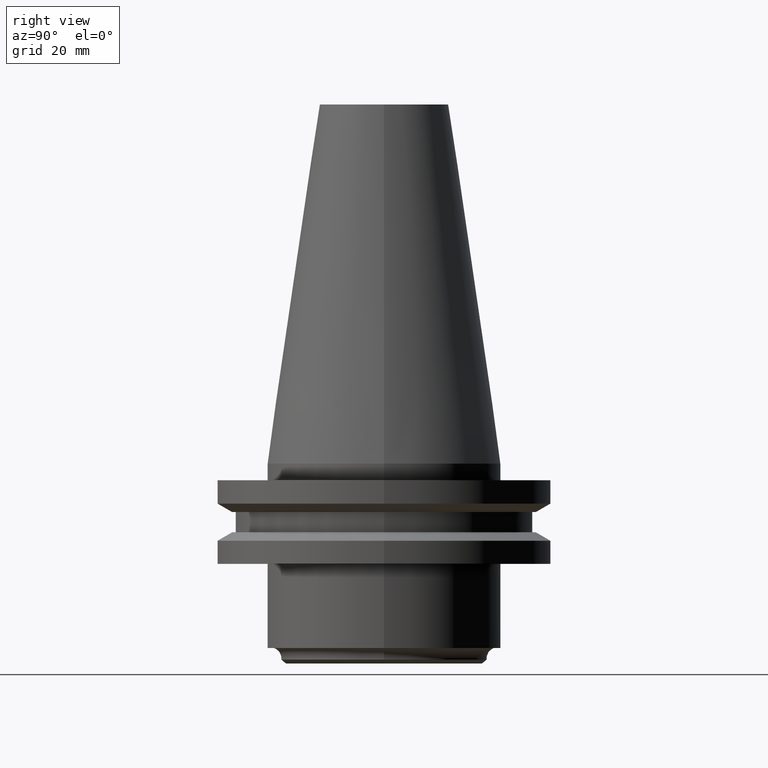
[diagram: clean part render]
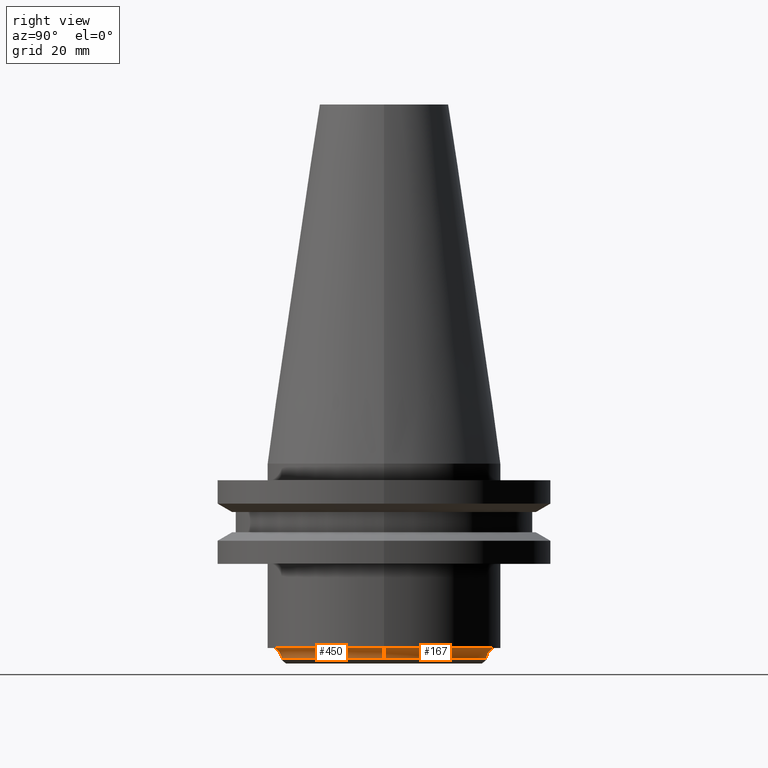
[diagram: same view with one multi-face feature highlighted, each face labeled with its STEP entity id]
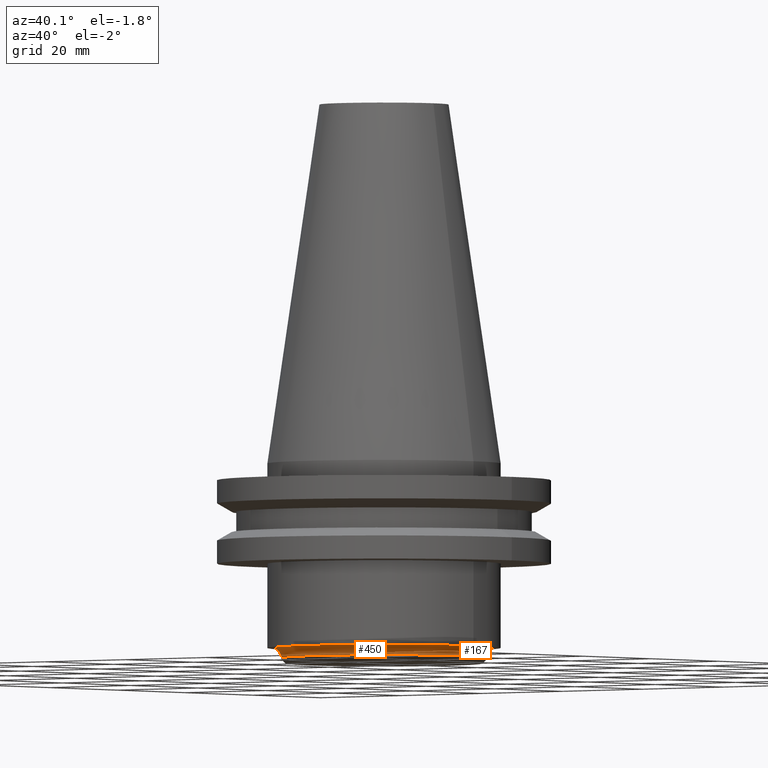
[diagram: same view with one multi-face feature highlighted, each face labeled with its STEP entity id]
A machine part, right view. The highlighted faces form ONE feature: a constant-radius fillet chain: 2 tangent blend faces with common blend radius 2 mm. The faces share edges in the B-rep.
A second angle (auxiliary view) of the same feature is appended — it is thin or edge-on in the first view.
Their STEP definitions:
[1] entity #167 (Torus):
#24 = CARTESIAN_POINT ( 'NONE',  ( 0.000000000000000000, 0.000000000000000000, -36.94999999999999574 ) ) ;
#52 = EDGE_CURVE ( 'NONE', #328, #809, #323, .T. ) ;
#89 = DIRECTION ( 'NONE',  ( 1.000000000000000000, 0.000000000000000000, 0.000000000000000000 ) ) ;
#130 = EDGE_LOOP ( 'NONE', ( #560, #666, #306, #519 ) ) ;
#148 = AXIS2_PLACEMENT_3D ( 'NONE', #580, #196, #427 ) ;
#149 = AXIS2_PLACEMENT_3D ( 'NONE', #413, #222, #357 ) ;
#158 = DIRECTION ( 'NONE',  ( -0.000000000000000000, -0.000000000000000000, 1.000000000000000000 ) ) ;
#163 = AXIS2_PLACEMENT_3D ( 'NONE', #595, #463, #790 ) ;
#167 = ADVANCED_FACE ( 'NONE', ( #765 ), #367, .F. ) ;
#178 = VERTEX_POINT ( 'NONE', #575 ) ;
#185 = AXIS2_PLACEMENT_3D ( 'NONE', #24, #726, #349 ) ;
#196 = DIRECTION ( 'NONE',  ( -0.000000000000000000, -0.000000000000000000, 1.000000000000000000 ) ) ;
#222 = DIRECTION ( 'NONE',  ( 0.000000000000000000, -1.000000000000000000, 0.000000000000000000 ) ) ;
#276 = CARTESIAN_POINT ( 'NONE',  ( -20.87550020016014329, 2.556511450072605118E-15, -35.04999999999999716 ) ) ;
#280 = VERTEX_POINT ( 'NONE', #457 ) ;
#306 = ORIENTED_EDGE ( 'NONE', *, *, #799, .T. ) ;
#323 = CIRCLE ( 'NONE', #626, 20.87550020016014685 ) ;
#328 = VERTEX_POINT ( 'NONE', #404 ) ;
#338 = EDGE_CURVE ( 'NONE', #809, #280, #643, .T. ) ;
#349 = DIRECTION ( 'NONE',  ( 1.000000000000000000, 0.000000000000000000, 0.000000000000000000 ) ) ;
#357 = DIRECTION ( 'NONE',  ( 0.000000000000000000, 0.000000000000000000, -1.000000000000000000 ) ) ;
#367 = TOROIDAL_SURFACE ( 'NONE', #148, 21.50000000000000000, 2.000000000000003997 ) ;
#401 = EDGE_CURVE ( 'NONE', #178, #280, #443, .T. ) ;
#404 = CARTESIAN_POINT ( 'NONE',  ( 20.87550020016014329, 0.000000000000000000, -35.04999999999999716 ) ) ;
#413 = CARTESIAN_POINT ( 'NONE',  ( 21.50000000000000000, 0.000000000000000000, -36.94999999999999574 ) ) ;
#427 = DIRECTION ( 'NONE',  ( 1.000000000000000000, 0.000000000000000000, 0.000000000000000000 ) ) ;
#443 = CIRCLE ( 'NONE', #185, 19.49999999999999289 ) ;
#457 = CARTESIAN_POINT ( 'NONE',  ( -19.49999999999999289, 2.472286354204971437E-15, -36.94999999999999574 ) ) ;
#463 = DIRECTION ( 'NONE',  ( 1.224646799147353207E-16, 1.000000000000000000, 0.000000000000000000 ) ) ;
#519 = ORIENTED_EDGE ( 'NONE', *, *, #401, .T. ) ;
#560 = ORIENTED_EDGE ( 'NONE', *, *, #338, .F. ) ;
#575 = CARTESIAN_POINT ( 'NONE',  ( 19.49999999999999289, 0.000000000000000000, -36.94999999999999574 ) ) ;
#580 = CARTESIAN_POINT ( 'NONE',  ( 0.000000000000000000, 0.000000000000000000, -36.94999999999999574 ) ) ;
#595 = CARTESIAN_POINT ( 'NONE',  ( -21.50000000000000000, 2.632990618166809235E-15, -36.94999999999999574 ) ) ;
#626 = AXIS2_PLACEMENT_3D ( 'NONE', #665, #158, #89 ) ;
#643 = CIRCLE ( 'NONE', #163, 2.000000000000005329 ) ;
#647 = CIRCLE ( 'NONE', #149, 2.000000000000001776 ) ;
#665 = CARTESIAN_POINT ( 'NONE',  ( 0.000000000000000000, 0.000000000000000000, -35.04999999999999716 ) ) ;
#666 = ORIENTED_EDGE ( 'NONE', *, *, #52, .F. ) ;
#726 = DIRECTION ( 'NONE',  ( -0.000000000000000000, -0.000000000000000000, 1.000000000000000000 ) ) ;
#765 = FACE_OUTER_BOUND ( 'NONE', #130, .T. ) ;
#790 = DIRECTION ( 'NONE',  ( -1.000000000000000000, 1.224646799147352961E-16, 0.000000000000000000 ) ) ;
#799 = EDGE_CURVE ( 'NONE', #328, #178, #647, .T. ) ;
#809 = VERTEX_POINT ( 'NONE', #276 ) ;
[2] entity #450 (Torus):
#10 = EDGE_CURVE ( 'NONE', #809, #328, #818, .T. ) ;
#38 = ORIENTED_EDGE ( 'NONE', *, *, #10, .F. ) ;
#39 = FACE_OUTER_BOUND ( 'NONE', #681, .T. ) ;
#120 = EDGE_CURVE ( 'NONE', #280, #178, #406, .T. ) ;
#140 = ORIENTED_EDGE ( 'NONE', *, *, #338, .T. ) ;
#149 = AXIS2_PLACEMENT_3D ( 'NONE', #413, #222, #357 ) ;
#163 = AXIS2_PLACEMENT_3D ( 'NONE', #595, #463, #790 ) ;
#178 = VERTEX_POINT ( 'NONE', #575 ) ;
#222 = DIRECTION ( 'NONE',  ( 0.000000000000000000, -1.000000000000000000, 0.000000000000000000 ) ) ;
#262 = DIRECTION ( 'NONE',  ( -0.000000000000000000, -0.000000000000000000, 1.000000000000000000 ) ) ;
#276 = CARTESIAN_POINT ( 'NONE',  ( -20.87550020016014329, 2.556511450072605118E-15, -35.04999999999999716 ) ) ;
#280 = VERTEX_POINT ( 'NONE', #457 ) ;
#299 = AXIS2_PLACEMENT_3D ( 'NONE', #616, #543, #730 ) ;
#328 = VERTEX_POINT ( 'NONE', #404 ) ;
#338 = EDGE_CURVE ( 'NONE', #809, #280, #643, .T. ) ;
#357 = DIRECTION ( 'NONE',  ( 0.000000000000000000, 0.000000000000000000, -1.000000000000000000 ) ) ;
#404 = CARTESIAN_POINT ( 'NONE',  ( 20.87550020016014329, 0.000000000000000000, -35.04999999999999716 ) ) ;
#406 = CIRCLE ( 'NONE', #806, 19.49999999999999289 ) ;
#413 = CARTESIAN_POINT ( 'NONE',  ( 21.50000000000000000, 0.000000000000000000, -36.94999999999999574 ) ) ;
#450 = ADVANCED_FACE ( 'NONE', ( #39 ), #454, .F. ) ;
#454 = TOROIDAL_SURFACE ( 'NONE', #299, 21.50000000000000000, 2.000000000000003997 ) ;
#455 = AXIS2_PLACEMENT_3D ( 'NONE', #798, #808, #802 ) ;
#457 = CARTESIAN_POINT ( 'NONE',  ( -19.49999999999999289, 2.472286354204971437E-15, -36.94999999999999574 ) ) ;
#463 = DIRECTION ( 'NONE',  ( 1.224646799147353207E-16, 1.000000000000000000, 0.000000000000000000 ) ) ;
#532 = ORIENTED_EDGE ( 'NONE', *, *, #120, .T. ) ;
#543 = DIRECTION ( 'NONE',  ( -0.000000000000000000, -0.000000000000000000, 1.000000000000000000 ) ) ;
#575 = CARTESIAN_POINT ( 'NONE',  ( 19.49999999999999289, 0.000000000000000000, -36.94999999999999574 ) ) ;
#587 = DIRECTION ( 'NONE',  ( 1.000000000000000000, 0.000000000000000000, 0.000000000000000000 ) ) ;
#595 = CARTESIAN_POINT ( 'NONE',  ( -21.50000000000000000, 2.632990618166809235E-15, -36.94999999999999574 ) ) ;
#613 = ORIENTED_EDGE ( 'NONE', *, *, #799, .F. ) ;
#616 = CARTESIAN_POINT ( 'NONE',  ( 0.000000000000000000, 0.000000000000000000, -36.94999999999999574 ) ) ;
#643 = CIRCLE ( 'NONE', #163, 2.000000000000005329 ) ;
#647 = CIRCLE ( 'NONE', #149, 2.000000000000001776 ) ;
#681 = EDGE_LOOP ( 'NONE', ( #38, #140, #532, #613 ) ) ;
#730 = DIRECTION ( 'NONE',  ( 1.000000000000000000, 0.000000000000000000, 0.000000000000000000 ) ) ;
#757 = CARTESIAN_POINT ( 'NONE',  ( 0.000000000000000000, 0.000000000000000000, -36.94999999999999574 ) ) ;
#790 = DIRECTION ( 'NONE',  ( -1.000000000000000000, 1.224646799147352961E-16, 0.000000000000000000 ) ) ;
#798 = CARTESIAN_POINT ( 'NONE',  ( 0.000000000000000000, 0.000000000000000000, -35.04999999999999716 ) ) ;
#799 = EDGE_CURVE ( 'NONE', #328, #178, #647, .T. ) ;
#802 = DIRECTION ( 'NONE',  ( 1.000000000000000000, 0.000000000000000000, 0.000000000000000000 ) ) ;
#806 = AXIS2_PLACEMENT_3D ( 'NONE', #757, #262, #587 ) ;
#808 = DIRECTION ( 'NONE',  ( -0.000000000000000000, -0.000000000000000000, 1.000000000000000000 ) ) ;
#809 = VERTEX_POINT ( 'NONE', #276 ) ;
#818 = CIRCLE ( 'NONE', #455, 20.87550020016014685 ) ;